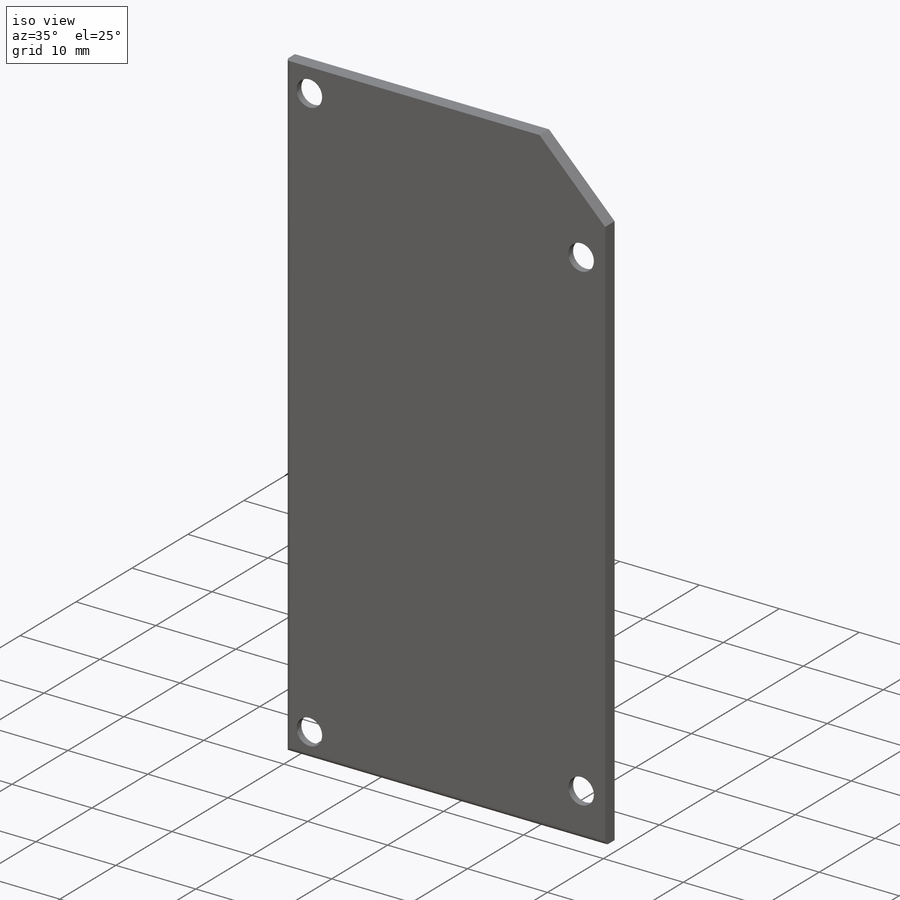
[diagram: iso view]
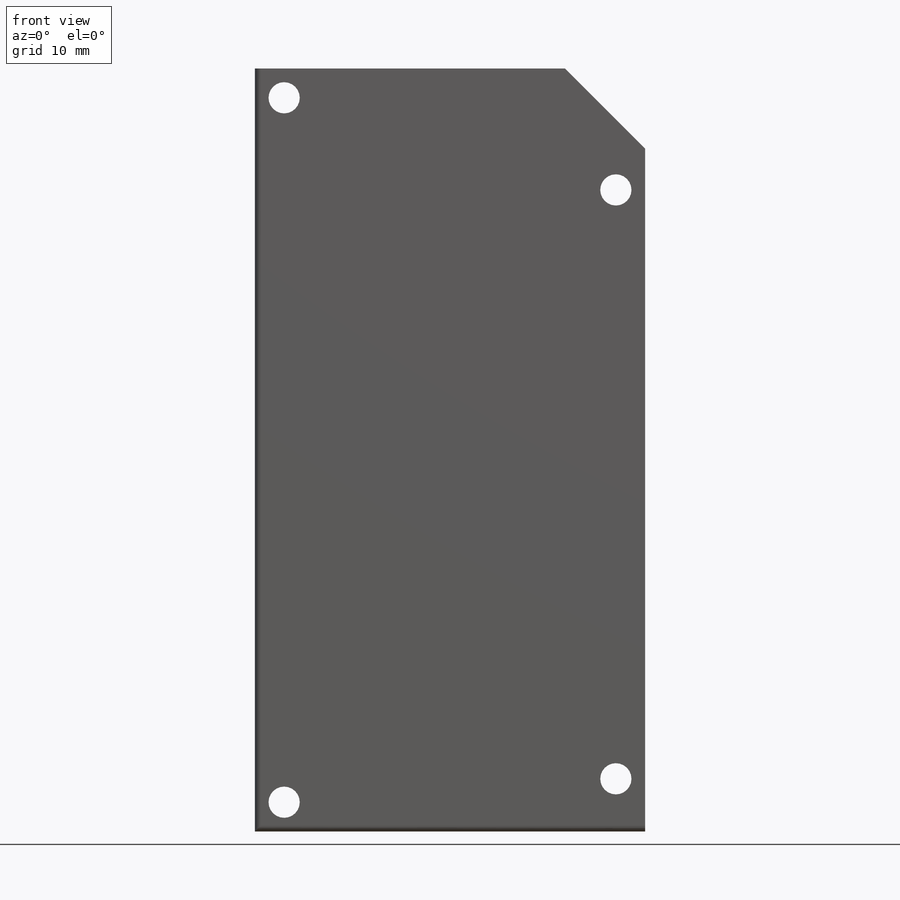
[diagram: front view]
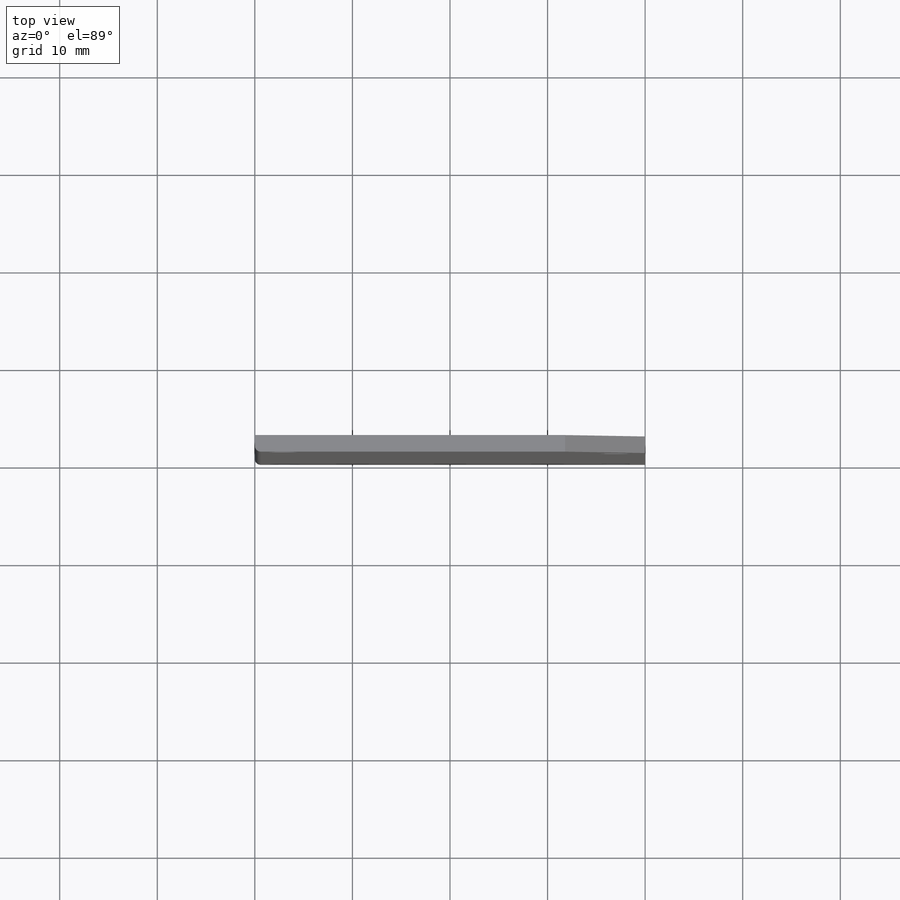
[diagram: top view]
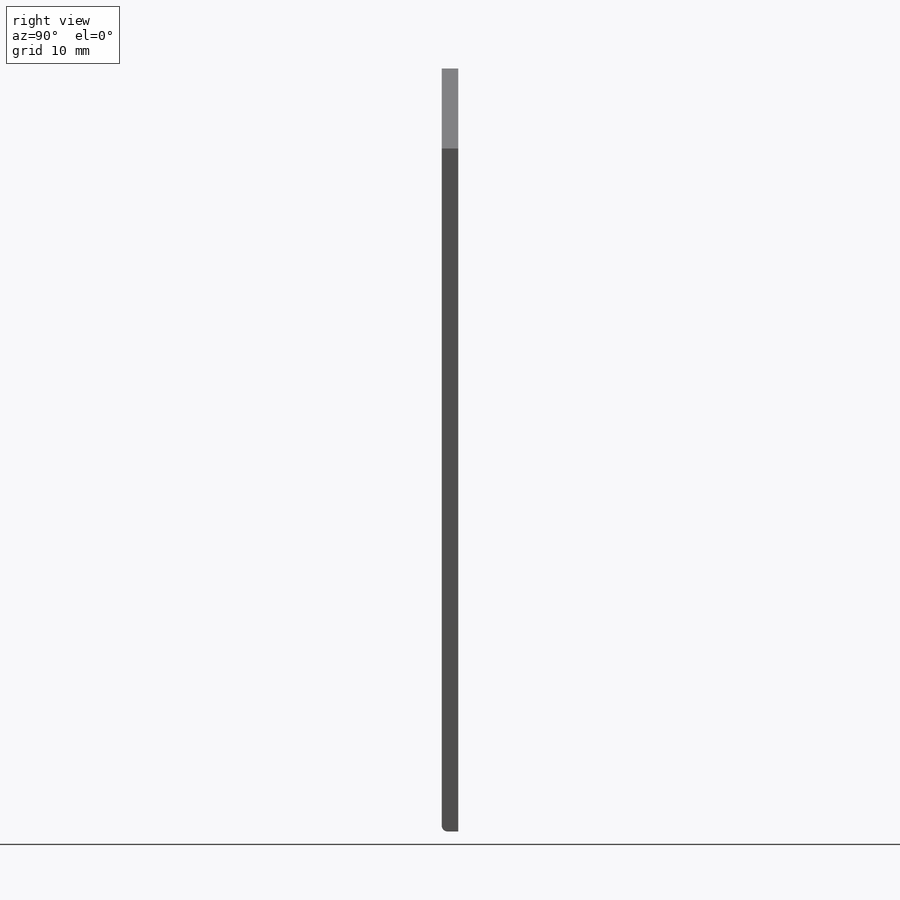
[diagram: right view]
SOLIDWORKS PART (.sldprt)
format: sldprt  version: not decoded by parser v0  size: 509,440 bytes
history: native  units: mm
features: sketch x13, cut_extrude x8, fillet x6, extrude x5, material x1, plane x1 (+13 scaffold rows collapsed)
feature tree (47):
  scaffold x13  (default folders/planes/origin — collapsed)
  material  "Material <not specified>"
  sketch  "Sketch1"  dims[c1.D6=2.05mm c1.D7=3.0mm c2.D6=6.0mm c2.D7=2.05mm c2.D1=78.2mm c2.D2=~49.880658mm c3.D2=135.0deg c3.D3=~43.515238mm c4.D3=135.0deg c5.D3=30.0mm c5.D4=70.0mm c5.D7=25.4mm c5.D8=4.76mm c6.D7=58.2mm c6.D1=40.0mm c6.D3=3.0mm c6.D5=3.0mm]
  extrude  "Boss-Extrude1"  Depth=28mm
  sketch  "Sketch2"  dims[D1=26.0mm D2=15.0mm]
  cut_extrude  "Cut-Extrude1"  Depth=0.6mm
  sketch  "Sketch3"  dims[c1.D1=20.2mm c1.D2=2.2mm c1.D3=1.2mm c2.D2=1.2mm c2.D3=2.2mm]
  cut_extrude  "Cut-Extrude2"  [1 undecoded]
  fillet  "Fillet1"  Radius=0.4mm
  sketch  "Sketch14"  dims[c1.D1=16.0mm c1.D2=3.2mm c1.D7=2.9mm c1.D9=4.0mm c1.D13=2.9mm c2.D9=4.0mm c2.D3=22.2mm c2.D4=14.5mm c2.D5=9.4mm c2.D6=11.8mm c2.D8=15.4mm c2.D10=15.0mm c2.D11=10.4mm c2.D12=5.5mm c2.D14=17.0mm c2.D15=2.5mm c3.D6=11.8mm c3.D4=28.0mm c3.D16=18.0mm c3.D17=3.0mm c3.D18=9.0mm]
  cut_extrude  "Cut-Extrude9"  [1 undecoded]
  fillet  "Fillet2"  Radius=5mm
  plane  "Plane1"
  sketch  "Sketch16"
  extrude  "Boss-Extrude2"  Depth=18mm
  sketch  "Sketch17"  dims[c1.D1=12.0mm c1.D2=12.0mm c1.D3=6.0mm c2.D2=10.0mm c2.D4=3.4mm]
  extrude  "Boss-Extrude3"  Depth=1.76mm
  sketch  "Sketch18"  dims[D1=7.14mm D2=3.57mm D3=3.4mm]
  cut_extrude  "Cut-Extrude10"  [1 undecoded]
  fillet  "Fillet3"  Radius=5mm
  sketch  "Sketch19"  dims[c1.D1=2.05mm c1.D3=2.05mm c1.D4=2.05mm c1.D5=2.05mm c1.D2=21.5mm c2.D3=3.25mm c2.D4=16.0mm c2.D5=~5.434288mm]
  cut_extrude  "Cut-Extrude11"  [1 undecoded]
  fillet  "Fillet4"  Radius=0.6mm
  sketch  "Sketch20"
  cut_extrude  "Cut-Extrude12"  [1 undecoded]
  sketch  "Sketch21"
  extrude  "Boss-Extrude4"  Depth=18mm
  fillet  "Fillet5"  Radius=2.5mm
  sketch  "Sketch22"  dims[D1=3.2mm]
  extrude  "Boss-Extrude5"  Depth=1.7mm
  sketch  "Sketch23"
  cut_extrude  "Cut-Extrude13"  [1 undecoded]
  sketch  "Sketch24"  dims[D1=5.5mm]
  cut_extrude  "Cut-Extrude14"  Depth=0.85mm
  fillet  "Fillet7"  Radius=0.6mm
decode coverage: 22 of 32 modeling features carry decoded parameters
note: ~ marks probable driven/reference dimensions
note: 6 parameter values undecoded
summary: no parameter record found for 6 features
note: suppression state not decoded; provenance and decode notes live in map.json
